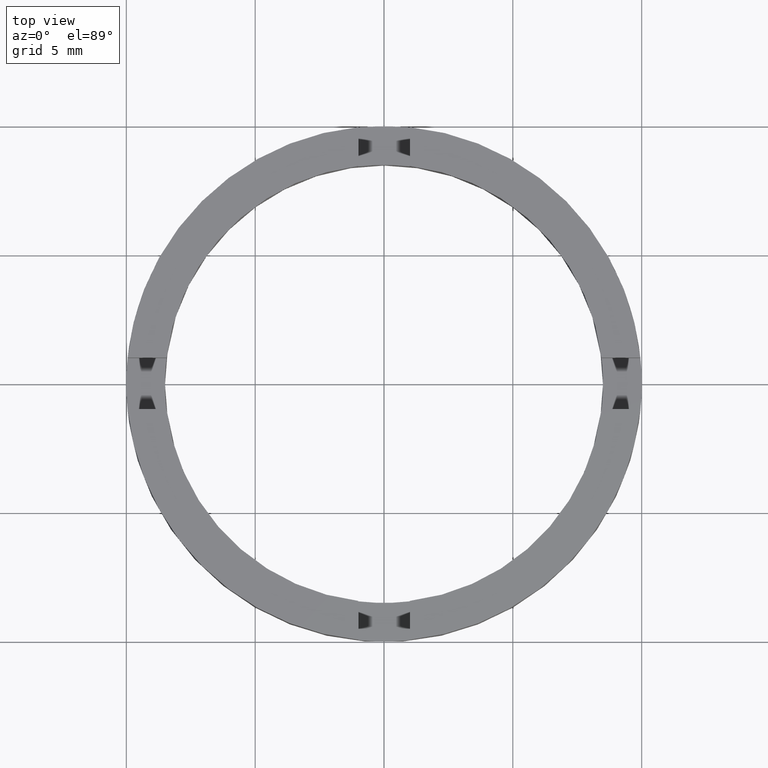
[diagram: clean part render]
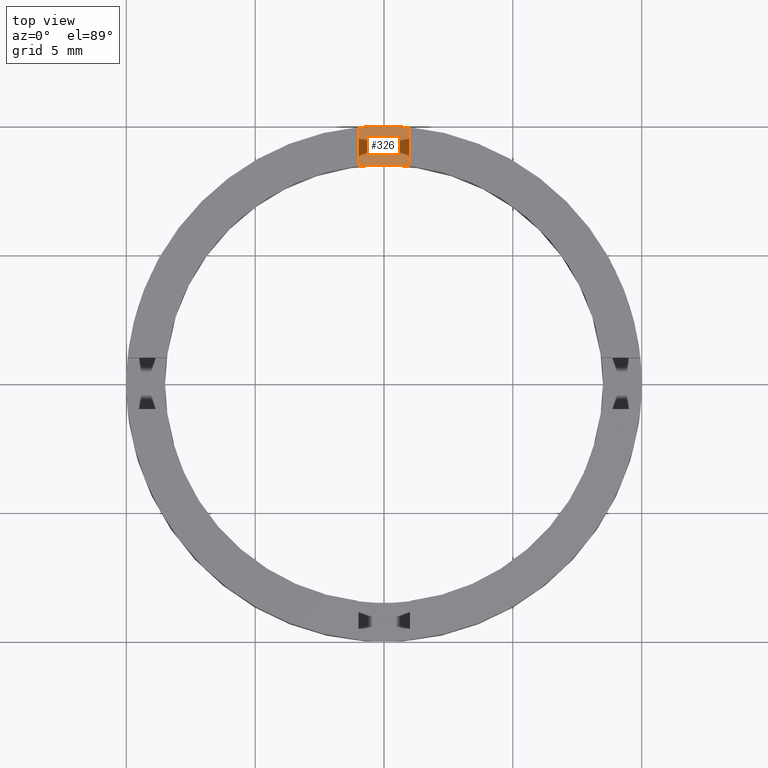
[diagram: same view with one face highlighted and labeled with its STEP entity id]
A machine part, top view. The second image highlights one B-rep face of the part: STEP entity #326.
In plain terms, the highlighted planar face has unit normal (-0, 0, 1).
Its self-contained STEP definition (entity closure, byte-faithful):
#37 = EDGE_CURVE ( 'NONE', #282, #461, #416, .T. ) ;
#49 = CARTESIAN_POINT ( 'NONE',  ( -0.9999999999999986677, 0.000000000000000000, 1.500000000000000000 ) ) ;
#170 = VECTOR ( 'NONE', #607, 1000.000000000000000 ) ;
#176 = DIRECTION ( 'NONE',  ( 1.000000000000000000, 4.440892098500626162E-15, 0.000000000000000000 ) ) ;
#248 = VERTEX_POINT ( 'NONE', #524 ) ;
#282 = VERTEX_POINT ( 'NONE', #545 ) ;
#299 = DIRECTION ( 'NONE',  ( -0.000000000000000000, 0.000000000000000000, 1.000000000000000000 ) ) ;
#301 = DIRECTION ( 'NONE',  ( 0.000000000000000000, -0.000000000000000000, -1.000000000000000000 ) ) ;
#326 = ADVANCED_FACE ( 'NONE', ( #649 ), #552, .T. ) ;
#332 = DIRECTION ( 'NONE',  ( 0.000000000000000000, 1.000000000000000000, -0.000000000000000000 ) ) ;
#338 = CARTESIAN_POINT ( 'NONE',  ( 0.000000000000000000, 0.000000000000000000, 1.500000000000000000 ) ) ;
#345 = DIRECTION ( 'NONE',  ( 1.000000000000000000, 0.000000000000000000, 0.000000000000000000 ) ) ;
#416 = CIRCLE ( 'NONE', #780, 8.500000000000000000 ) ;
#439 = CARTESIAN_POINT ( 'NONE',  ( 1.000000000000001332, 0.000000000000000000, 1.500000000000000000 ) ) ;
#445 = LINE ( 'NONE', #49, #712 ) ;
#447 = CARTESIAN_POINT ( 'NONE',  ( 0.000000000000000000, 0.000000000000000000, 1.500000000000000000 ) ) ;
#451 = CIRCLE ( 'NONE', #758, 10.00000000000000000 ) ;
#461 = VERTEX_POINT ( 'NONE', #583 ) ;
#478 = ORIENTED_EDGE ( 'NONE', *, *, #631, .T. ) ;
#485 = ORIENTED_EDGE ( 'NONE', *, *, #587, .F. ) ;
#524 = CARTESIAN_POINT ( 'NONE',  ( 1.000000000000001332, 9.949874371066199430, 1.500000000000000000 ) ) ;
#528 = ORIENTED_EDGE ( 'NONE', *, *, #595, .T. ) ;
#540 = CARTESIAN_POINT ( 'NONE',  ( 0.000000000000000000, 0.000000000000000000, 1.500000000000000000 ) ) ;
#545 = CARTESIAN_POINT ( 'NONE',  ( -0.9999999999999986677, 8.440971508067066864, 1.500000000000000000 ) ) ;
#552 = PLANE ( 'NONE',  #768 ) ;
#553 = ORIENTED_EDGE ( 'NONE', *, *, #37, .T. ) ;
#554 = EDGE_LOOP ( 'NONE', ( #485, #553, #478, #528 ) ) ;
#559 = CARTESIAN_POINT ( 'NONE',  ( -0.9999999999999986677, 9.949874371066199430, 1.500000000000000000 ) ) ;
#579 = DIRECTION ( 'NONE',  ( 1.000000000000000000, 0.000000000000000000, 0.000000000000000000 ) ) ;
#583 = CARTESIAN_POINT ( 'NONE',  ( 1.000000000000001332, 8.440971508067066864, 1.500000000000000000 ) ) ;
#587 = EDGE_CURVE ( 'NONE', #282, #654, #445, .T. ) ;
#595 = EDGE_CURVE ( 'NONE', #248, #654, #451, .T. ) ;
#596 = DIRECTION ( 'NONE',  ( -0.000000000000000000, 0.000000000000000000, 1.000000000000000000 ) ) ;
#607 = DIRECTION ( 'NONE',  ( 0.000000000000000000, 1.000000000000000000, -0.000000000000000000 ) ) ;
#631 = EDGE_CURVE ( 'NONE', #461, #248, #722, .T. ) ;
#649 = FACE_OUTER_BOUND ( 'NONE', #554, .T. ) ;
#654 = VERTEX_POINT ( 'NONE', #559 ) ;
#712 = VECTOR ( 'NONE', #332, 1000.000000000000000 ) ;
#722 = LINE ( 'NONE', #439, #170 ) ;
#758 = AXIS2_PLACEMENT_3D ( 'NONE', #447, #299, #345 ) ;
#768 = AXIS2_PLACEMENT_3D ( 'NONE', #338, #596, #579 ) ;
#780 = AXIS2_PLACEMENT_3D ( 'NONE', #540, #301, #176 ) ;